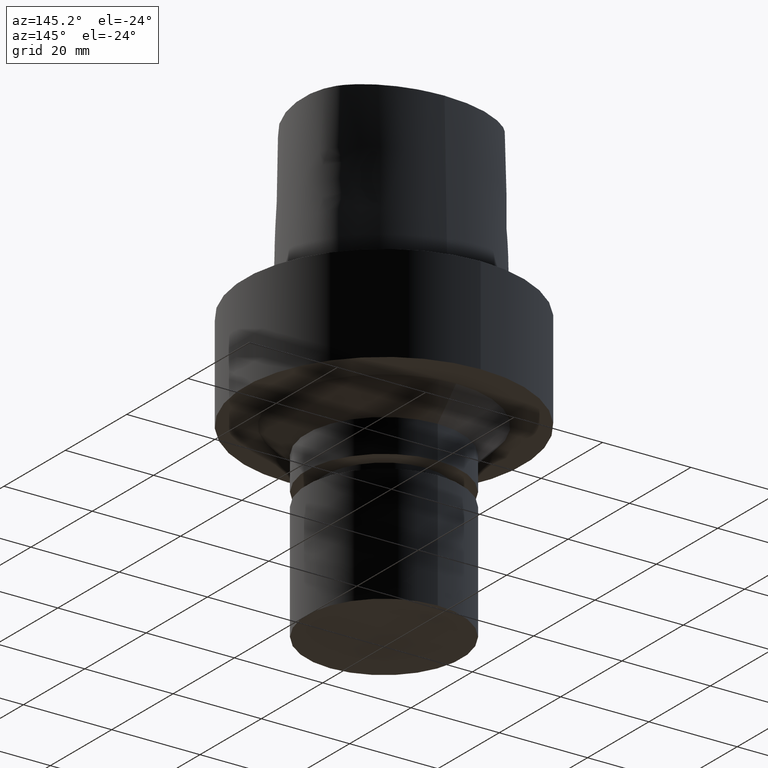
[diagram: clean part render]
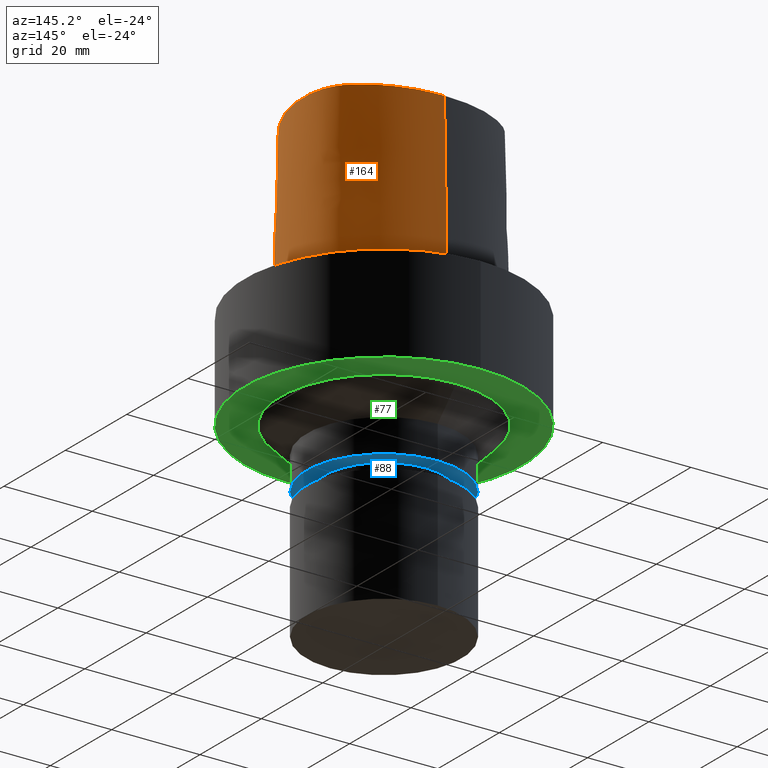
[diagram: same view with three faces highlighted in distinct colors, each labeled with its STEP entity id]
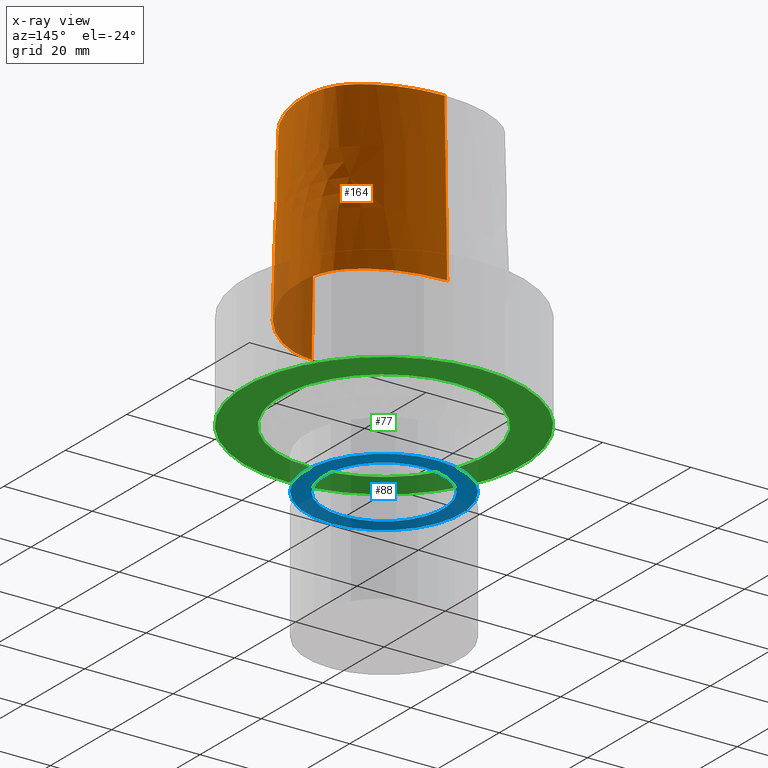
[diagram: x-ray of the same camera — body ghosted, the three highlighted faces saturated]
A machine part, auxiliary view with three faces highlighted in distinct colors.
The next image is the same camera in x-ray (body ghosted, the three faces saturated) — at least one of them is partly hidden behind the body in this view.
Their STEP definitions:

[orange] entity #164 — the highlighted face is a freeform B-spline surface patch.
#83=EDGE_CURVE('Unnamed[1]',#207,#208,#209,.T.);
#85=EDGE_CURVE('Unnamed[1]',#211,#212,#213,.T.);
#164=ADVANCED_FACE('Unnamed[1]',(#327),#328,.T.);
#166=EDGE_CURVE('Unnamed[1]',#207,#212,#330,.T.);
#168=EDGE_CURVE('Unnamed[1]',#208,#211,#332,.T.);
#207=VERTEX_POINT('',#369);
#208=VERTEX_POINT('',#370);
#209=B_SPLINE_CURVE_WITH_KNOTS('',3,(#371,#372,#373,#374,#375,#376,#377,#378,#379,#380,#381,#382,#383,#384,#385,#386),.UNSPECIFIED.,.F.,.F.,(4,1,1,1,1,1,1,1,1,1,1,1,1,4),(6.61513393087476,6.99917207152274,7.48193246986995,7.96289324787093,8.45540287038584,9.10291653679981,9.67129810936083,10.1618749681153,10.6358867802489,11.1080734988593,11.6043706019633,12.09451993853,12.6985979284494,13.2302678617486),.UNSPECIFIED.);
#211=VERTEX_POINT('',#389);
#212=VERTEX_POINT('',#390);
#213=B_SPLINE_CURVE_WITH_KNOTS('',3,(#391,#392,#393,#394,#395,#396,#397,#398,#399,#400,#401,#402,#403,#404,#405,#406,#407),.UNSPECIFIED.,.F.,.F.,(4,1,1,1,1,1,1,1,1,1,1,1,1,1,4),(-13.2302678617486,-12.816821991069,-12.4033761203893,-11.9899302497097,-11.57648437903,-11.1630385083504,-10.9563155730106,-10.7495926376707,-10.3361467669911,-9.92270089631145,-9.09580915495216,-8.26891741359287,-7.44202567223358,-7.02857980155394,-6.6151339308743),.UNSPECIFIED.);
#327=FACE_OUTER_BOUND('',#583,.T.);
#328=B_SPLINE_SURFACE_WITH_KNOTS('',3,3,((#584,#585,#586,#587),(#588,#589,#590,#591),(#592,#593,#594,#595),(#596,#597,#598,#599),(#600,#601,#602,#603),(#604,#605,#606,#607),(#608,#609,#610,#611),(#612,#613,#614,#615),(#616,#617,#618,#619),(#620,#621,#622,#623),(#624,#625,#626,#627),(#628,#629,#630,#631),(#632,#633,#634,#635),(#636,#637,#638,#639),(#640,#641,#642,#643),(#644,#645,#646,#647),(#648,#649,#650,#651)),.UNSPECIFIED.,.F.,.F.,.F.,(4,1,1,1,1,1,1,1,1,1,1,1,1,1,4),(4,4),(-13.2302678617486,-12.816821991069,-12.4033761203893,-11.9899302497097,-11.57648437903,-11.1630385083504,-10.9563155730106,-10.7495926376707,-10.3361467669911,-9.92270089631145,-9.09580915495216,-8.26891741359287,-7.44202567223358,-7.02857980155394,-6.6151339308743),(-3.8,0.0),.UNSPECIFIED.);
#330=LINE('',#654,#655);
#332=LINE('',#658,#659);
#369=CARTESIAN_POINT('',(0.038736923393866,-22.5191997536361,38.0));
#370=CARTESIAN_POINT('',(-0.001218547003662,19.7276821925089,38.0));
#371=CARTESIAN_POINT('',(0.038736923394311,-22.519199753636,38.0));
#372=CARTESIAN_POINT('',(1.31742058183662,-22.512662269405,38.0));
#373=CARTESIAN_POINT('',(4.2093773447498,-21.9116226439989,38.0));
#374=CARTESIAN_POINT('',(8.20895504542113,-19.7798683845067,38.0));
#375=CARTESIAN_POINT('',(11.9784633234593,-16.681663904162,38.0));
#376=CARTESIAN_POINT('',(15.5308821579362,-12.5807487594113,38.0));
#377=CARTESIAN_POINT('',(18.4566248438667,-7.64932246015528,38.0));
#378=CARTESIAN_POINT('',(20.4036090752029,-2.27012499825289,38.0));
#379=CARTESIAN_POINT('',(21.2357187429189,2.79891401173156,38.0));
#380=CARTESIAN_POINT('',(21.0811206267748,7.62543090736657,38.0));
#381=CARTESIAN_POINT('',(19.3383577336563,12.2772250726194,38.0));
#382=CARTESIAN_POINT('',(15.5796322014404,15.5799672120682,38.0));
#383=CARTESIAN_POINT('',(10.8392956074438,17.9834601687347,38.0));
#384=CARTESIAN_POINT('',(5.56068045850571,19.4586143858472,38.0));
#385=CARTESIAN_POINT('',(1.77223893711014,19.6418877095654,38.0));
#386=CARTESIAN_POINT('',(-0.001218367817519,19.7276822012873,38.0));
#389=CARTESIAN_POINT('',(0.044682985379347,20.6765087343109,1.61778115328528E-031));
#390=CARTESIAN_POINT('',(0.04359356758149,-23.4691235068931,7.78075697532443E-032));
#391=CARTESIAN_POINT('',(0.044682985379347,20.6765087343109,1.61778115328528E-031));
#392=CARTESIAN_POINT('',(1.42379272427753,20.6097915814392,8.62816615085482E-032));
#393=CARTESIAN_POINT('',(4.2230955003445,20.4837538303966,1.4791141972894E-031));
#394=CARTESIAN_POINT('',(8.47220762821777,19.6890432607088,9.86076131526265E-032));
#395=CARTESIAN_POINT('',(12.5141247708253,18.2434968480404,0.0));
#396=CARTESIAN_POINT('',(16.3038624872874,16.1734192182143,1.97215226305253E-031));
#397=CARTESIAN_POINT('',(19.1446913988473,13.7036723639434,-1.97215226305253E-031));
#398=CARTESIAN_POINT('',(20.7319894342149,11.1014620996188,0.0));
#399=CARTESIAN_POINT('',(21.7831756505763,8.28099229708081,-1.97215226305253E-031));
#400=CARTESIAN_POINT('',(22.2258240701438,4.60865440596506,0.0));
#401=CARTESIAN_POINT('',(21.7436130080666,-1.11326526354485,0.0));
#402=CARTESIAN_POINT('',(19.5519487660502,-7.95432366164584,0.0));
#403=CARTESIAN_POINT('',(14.9574167123838,-15.2089785567293,0.0));
#404=CARTESIAN_POINT('',(9.66840283021945,-20.0827414369705,-9.86076131526265E-032));
#405=CARTESIAN_POINT('',(4.51628650521788,-22.7946374572188,-9.86076131526265E-032));
#406=CARTESIAN_POINT('',(1.55867251738073,-23.4612972770043,-1.23259516440783E-032));
#407=CARTESIAN_POINT('',(0.04359356758149,-23.4691235068931,7.78075697532443E-032));
#583=EDGE_LOOP('',(#876,#877,#878,#879));
#584=CARTESIAN_POINT('',(-0.001218367817519,19.7276822012873,38.0));
#585=CARTESIAN_POINT('',(0.014082083248157,20.0439577123075,25.3333333333066));
#586=CARTESIAN_POINT('',(0.029382534313671,20.3602332232908,12.6666666666934));
#587=CARTESIAN_POINT('',(0.044682985379347,20.6765087343109,1.61778115328528E-031));
#588=CARTESIAN_POINT('',(1.37788651195108,19.6609652834875,38.0));
#589=CARTESIAN_POINT('',(1.3931885827258,19.9772407169847,25.3333333333066));
#590=CARTESIAN_POINT('',(1.40849065356095,20.2935162254648,12.6666666666934));
#591=CARTESIAN_POINT('',(1.42379272427753,20.6097915814392,8.62816615085482E-032));
#592=CARTESIAN_POINT('',(4.135446440878,19.5347778787784,38.0));
#593=CARTESIAN_POINT('',(4.16466278851883,19.8511031866125,25.3333333333066));
#594=CARTESIAN_POINT('',(4.1938791526746,20.1674284644204,12.6666666666934));
#595=CARTESIAN_POINT('',(4.2230955003445,20.4837538303966,1.4791141972894E-031));
#596=CARTESIAN_POINT('',(8.213607363795,18.7706026638736,38.0));
#597=CARTESIAN_POINT('',(8.29980745008421,19.0767495109635,25.3333333333066));
#598=CARTESIAN_POINT('',(8.38600751285747,19.3828964329996,12.6666666666934));
#599=CARTESIAN_POINT('',(8.47220762821777,19.6890432607088,9.86076131526265E-032));
#600=CARTESIAN_POINT('',(12.1316338645671,17.3698624840857,38.0));
#601=CARTESIAN_POINT('',(12.2591308270381,17.6610739397708,25.3333333333066));
#602=CARTESIAN_POINT('',(12.3866278083543,17.9522853923553,12.6666666666934));
#603=CARTESIAN_POINT('',(12.5141247708253,18.2434968480404,0.0));
#604=CARTESIAN_POINT('',(15.7706546153679,15.3789501349612,38.0));
#605=CARTESIAN_POINT('',(15.9483905900895,15.6437731794811,25.3333333333066));
#606=CARTESIAN_POINT('',(16.1261265513272,15.9085961736944,12.6666666666934));
#607=CARTESIAN_POINT('',(16.3038624872874,16.1734192182143,1.97215226305253E-031));
#608=CARTESIAN_POINT('',(18.4265894256284,13.0570022172893,38.0));
#609=CARTESIAN_POINT('',(18.6659567517146,13.2725589420689,25.3333333333066));
#610=CARTESIAN_POINT('',(18.9053240921419,13.4881156488541,12.6666666666934));
#611=CARTESIAN_POINT('',(19.1446913988473,13.7036723639434,-1.97215226305253E-031));
#612=CARTESIAN_POINT('',(19.8679958653038,10.6923771981998,38.0));
#613=CARTESIAN_POINT('',(20.1559937048299,10.8287388264873,25.3333333333066));
#614=CARTESIAN_POINT('',(20.4439915656177,10.965100461641,12.6666666666934));
#615=CARTESIAN_POINT('',(20.7319894342149,11.1014620996188,0.0));
#616=CARTESIAN_POINT('',(20.8470867582337,8.07149548576131,38.0));
#617=CARTESIAN_POINT('',(21.1591164072431,8.14132775555392,25.3333333333066));
#618=CARTESIAN_POINT('',(21.4711459821861,8.21116003697855,12.6666666666934));
#619=CARTESIAN_POINT('',(21.7831756505763,8.28099229708081,-1.97215226305253E-031));
#620=CARTESIAN_POINT('',(21.2693244256982,4.61157245650171,38.0));
#621=CARTESIAN_POINT('',(21.5881576801997,4.6105997689982,25.3333333333066));
#622=CARTESIAN_POINT('',(21.9069908544037,4.60962709346857,12.6666666666934));
#623=CARTESIAN_POINT('',(22.2258240701438,4.60865440596506,0.0));
#624=CARTESIAN_POINT('',(20.8071610855575,-0.912828649855193,38.0));
#625=CARTESIAN_POINT('',(21.119311671178,-0.979640884839481,25.3333333333066));
#626=CARTESIAN_POINT('',(21.4314624224461,-1.04645306732201,12.6666666666934));
#627=CARTESIAN_POINT('',(21.7436130080666,-1.11326526354485,0.0));
#628=CARTESIAN_POINT('',(18.6841935581315,-7.54428794252837,38.0));
#629=CARTESIAN_POINT('',(18.9734452551861,-7.6809665891091,25.3333333333066));
#630=CARTESIAN_POINT('',(19.2626970689956,-7.81764505382656,12.6666666666934));
#631=CARTESIAN_POINT('',(19.5519487660502,-7.95432366164584,0.0));
#632=CARTESIAN_POINT('',(14.2175552814,-14.5971504342323,38.0));
#633=CARTESIAN_POINT('',(14.4641757465198,-14.8010930946929,25.3333333333066));
#634=CARTESIAN_POINT('',(14.710796247264,-15.0050359737917,12.6666666666934));
#635=CARTESIAN_POINT('',(14.9574167123838,-15.2089785567293,0.0));
#636=CARTESIAN_POINT('',(9.0844808732933,-19.3179298129689,38.0));
#637=CARTESIAN_POINT('',(9.27912152349017,-19.572866915557,25.3333333333066));
#638=CARTESIAN_POINT('',(9.47376218971294,-19.827804295621,12.6666666666934));
#639=CARTESIAN_POINT('',(9.66840283021945,-20.0827414369705,-9.86076131526265E-032));
#640=CARTESIAN_POINT('',(4.17112919194182,-21.8987568152736,38.0));
#641=CARTESIAN_POINT('',(4.28618163483998,-22.1973837173649,25.3333333333066));
#642=CARTESIAN_POINT('',(4.40123406239433,-22.4960105163661,12.6666666666934));
#643=CARTESIAN_POINT('',(4.51628650521788,-22.7946374572188,-9.86076131526265E-032));
#644=CARTESIAN_POINT('',(1.41533654381097,-22.5120888467812,38.0));
#645=CARTESIAN_POINT('',(1.46311520162011,-22.8284916374445,25.3333333333066));
#646=CARTESIAN_POINT('',(1.51089385942236,-23.144894486341,12.6666666666934));
#647=CARTESIAN_POINT('',(1.55867251738073,-23.4612972770043,-1.23259516440783E-032));
#648=CARTESIAN_POINT('',(0.038736923393866,-22.5191997536361,38.0));
#649=CARTESIAN_POINT('',(0.04035580478973,-22.8358410047159,25.3333333333066));
#650=CARTESIAN_POINT('',(0.041974686185626,-23.1524822558133,12.6666666666934));
#651=CARTESIAN_POINT('',(0.04359356758149,-23.4691235068931,7.78075697532443E-032));
#654=CARTESIAN_POINT('',(0.038736923393866,-22.5191997536361,38.0));
#655=VECTOR('',#880,38.0118715498723);
#658=CARTESIAN_POINT('',(-0.001218547003662,19.7276821925089,38.0));
#659=VECTOR('',#881,38.0118715503078);
#876=ORIENTED_EDGE('',*,*,#85,.F.);
#877=ORIENTED_EDGE('',*,*,#168,.F.);
#878=ORIENTED_EDGE('',*,*,#83,.F.);
#879=ORIENTED_EDGE('',*,*,#166,.T.);
#880=DIRECTION('',(0.000127766510556,-0.024990186342461,-0.999687688361864));
#881=DIRECTION('',(0.001207557810519,0.024961321374199,-0.999687688350411));

[blue] entity #88 — the highlighted planar face has unit normal (0, 0, -1).
#79=EDGE_CURVE('Unnamed[1]',#201,#201,#202,.T.);
#88=ADVANCED_FACE('Unnamed[1]',(#216,#217),#218,.T.);
#159=EDGE_CURVE('Unnamed[1]',#320,#320,#321,.T.);
#201=VERTEX_POINT('',#361);
#202=CIRCLE('',#362,17.4999999999999);
#216=FACE_BOUND('',#411,.T.);
#217=FACE_OUTER_BOUND('',#412,.T.);
#218=PLANE('',#413);
#320=VERTEX_POINT('',#574);
#321=CIRCLE('',#575,13.4999999999908);
#361=CARTESIAN_POINT('',(2.17374806848654E-015,17.4999999999999,-35.4999999999998));
#362=AXIS2_PLACEMENT_3D('',#750,#751,#752);
#411=EDGE_LOOP('',(#757));
#412=EDGE_LOOP('',(#758));
#413=AXIS2_PLACEMENT_3D('',#759,#760,#761);
#574=CARTESIAN_POINT('',(2.17374806848654E-015,13.4999999999908,-35.4999999999998));
#575=AXIS2_PLACEMENT_3D('',#869,#870,#871);
#750=CARTESIAN_POINT('',(2.17374806848654E-015,4.34749613697308E-015,-35.4999999999998));
#751=DIRECTION('',(6.12323399573677E-017,1.22464679914735E-016,-1.0));
#752=DIRECTION('',(-1.23259516440783E-032,1.0,1.22464679914735E-016));
#757=ORIENTED_EDGE('',*,*,#159,.F.);
#758=ORIENTED_EDGE('',*,*,#79,.T.);
#759=CARTESIAN_POINT('',(2.17374806848654E-015,15.4999999999954,-35.4999999999998));
#760=DIRECTION('',(6.12323399573677E-017,1.22464679914735E-016,-1.0));
#761=DIRECTION('',(-1.23259516440783E-032,1.0,1.22464679914735E-016));
#869=CARTESIAN_POINT('',(2.17374806848654E-015,4.34749613697308E-015,-35.4999999999998));
#870=DIRECTION('',(6.12323399573677E-017,1.22464679914735E-016,-1.0));
#871=DIRECTION('',(-1.23259516440783E-032,1.0,1.22464679914735E-016));

[green] entity #77 — the highlighted planar face has unit normal (0, -0, -1).
#77=ADVANCED_FACE('Unnamed[1]',(#197,#198),#199,.T.);
#101=EDGE_CURVE('Unnamed[1]',#238,#238,#239,.T.);
#138=EDGE_CURVE('Unnamed[1]',#289,#289,#290,.T.);
#197=FACE_BOUND('',#356,.T.);
#198=FACE_OUTER_BOUND('',#357,.T.);
#199=PLANE('',#358);
#238=VERTEX_POINT('',#438);
#239=CIRCLE('',#439,23.5);
#289=VERTEX_POINT('',#517);
#290=CIRCLE('',#518,31.5);
#356=EDGE_LOOP('',(#745));
#357=EDGE_LOOP('',(#746));
#358=AXIS2_PLACEMENT_3D('',#747,#748,#749);
#438=CARTESIAN_POINT('',(1.34711147906209E-015,23.5,-22.0));
#439=AXIS2_PLACEMENT_3D('',#785,#786,#787);
#517=CARTESIAN_POINT('',(1.34711147906212E-015,31.5,-22.0000000000006));
#518=AXIS2_PLACEMENT_3D('',#837,#838,#839);
#745=ORIENTED_EDGE('',*,*,#101,.F.);
#746=ORIENTED_EDGE('',*,*,#138,.T.);
#747=CARTESIAN_POINT('',(1.34711147906211E-015,27.5,-22.0000000000003));
#748=DIRECTION('',(6.12323399573677E-017,-7.22640765256452E-014,-1.0));
#749=DIRECTION('',(4.42007134779277E-030,1.0,-7.22640765256452E-014));
#785=CARTESIAN_POINT('',(1.34711147906209E-015,2.69422295812418E-015,-22.0));
#786=DIRECTION('',(6.12323399573677E-017,1.22464679914735E-016,-1.0));
#787=DIRECTION('',(-1.23259516440783E-032,1.0,1.22464679914735E-016));
#837=CARTESIAN_POINT('',(1.34711147906212E-015,2.69422295812425E-015,-22.0000000000006));
#838=DIRECTION('',(6.12323399573677E-017,1.22464679914735E-016,-1.0));
#839=DIRECTION('',(-1.23259516440783E-032,1.0,1.22464679914735E-016));